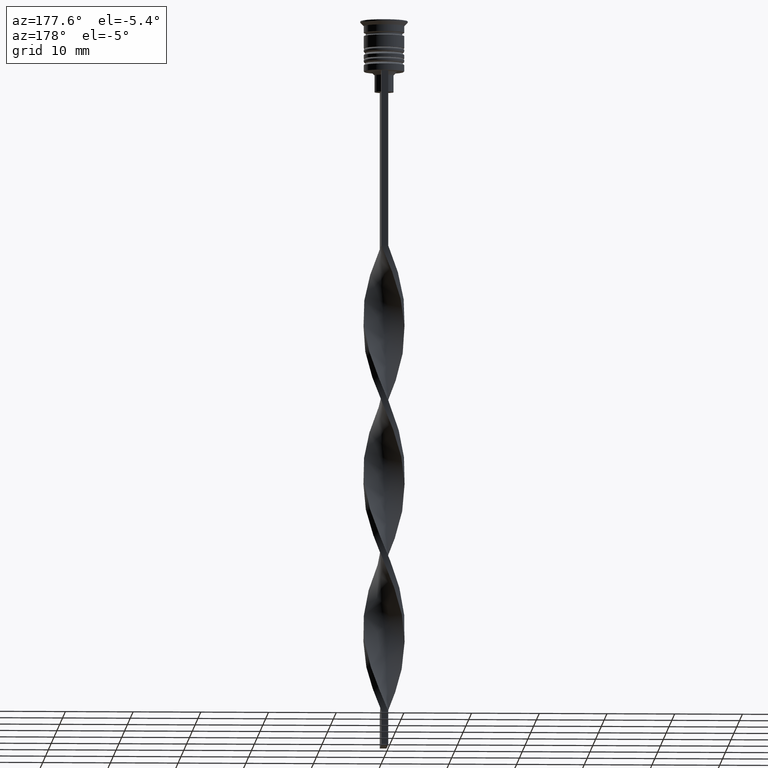
[diagram: clean part render]
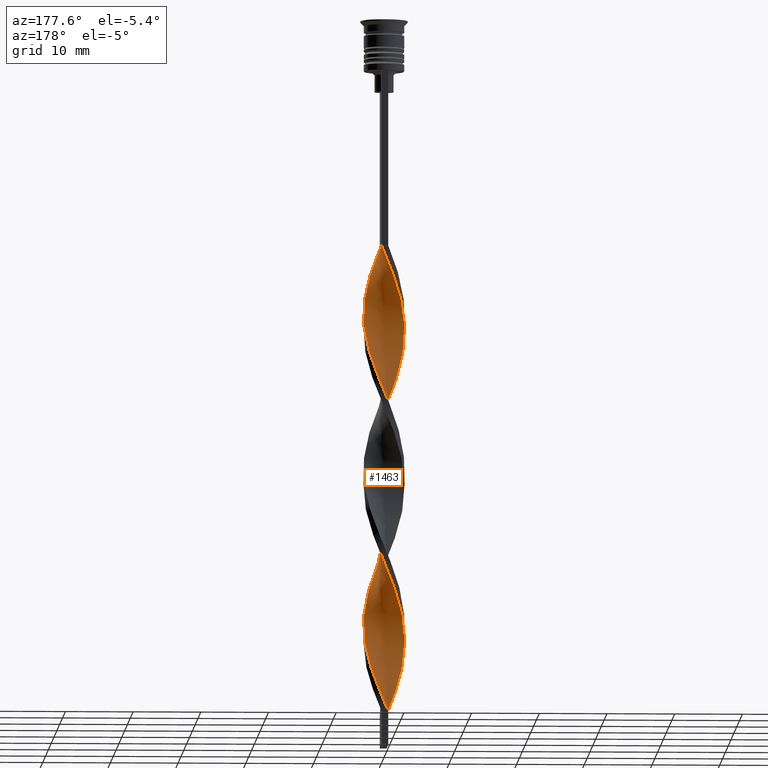
[diagram: same view with one face highlighted and labeled with its STEP entity id]
A machine part, auxiliary view. The second image highlights one B-rep face of the part: STEP entity #1463.
In plain terms, the highlighted face is a freeform B-spline surface patch.
Its self-contained STEP definition (entity closure, byte-faithful):
#11 = CARTESIAN_POINT ( 'NONE',  ( -2.441810035334001761, -1.850388947743476509, -71.53846153846154721 ) ) ;
#19 = CARTESIAN_POINT ( 'NONE',  ( 2.596021493184669904, 1.626975080790203032, -73.30769230769232081 ) ) ;
#20 = CARTESIAN_POINT ( 'NONE',  ( -1.928028413296781762, 2.380983398537114049, -85.69230769230770761 ) ) ;
#26 = CARTESIAN_POINT ( 'NONE',  ( 1.928028413296782428, 2.380983398537112716, -96.30769230769232081 ) ) ;
#42 = CARTESIAN_POINT ( 'NONE',  ( -0.2324760841496473773, 3.032483284421934933, -35.26923076923077360 ) ) ;
#44 = CARTESIAN_POINT ( 'NONE',  ( 3.022034030597048559, 0.5036723384328410935, -91.00000000000001421 ) ) ;
#58 = CARTESIAN_POINT ( 'NONE',  ( -0.2324760841496473773, 3.032483284421934933, -81.26923076923077360 ) ) ;
#60 = CARTESIAN_POINT ( 'NONE',  ( 1.203417901575699167, -2.793167620134377582, -81.26923076923077360 ) ) ;
#64 = CARTESIAN_POINT ( 'NONE',  ( 2.131225204431203668, -2.200966749995606264, -83.92307692307691980 ) ) ;
#77 = CARTESIAN_POINT ( 'NONE',  ( 2.363623348807935898, -1.913970915392906091, -84.80769230769232081 ) ) ;
#79 = CARTESIAN_POINT ( 'NONE',  ( -0.8642659496667827179, -2.939289008388869640, -101.6153846153846132 ) ) ;
#97 = CARTESIAN_POINT ( 'NONE',  ( 3.038394962421823831, 0.1347443962830572051, -90.11538461538462741 ) ) ;
#99 = CARTESIAN_POINT ( 'NONE',  ( 2.627746284534977050, 1.531322782470313726, -47.65384615384616041 ) ) ;
#106 = CARTESIAN_POINT ( 'NONE',  ( 0.4999999999999998890, -3.000000000000000000, -33.50000000000000000 ) ) ;
#117 = CARTESIAN_POINT ( 'NONE',  ( 3.054755894246598658, -0.2341835458667260450, -43.23076923076922640 ) ) ;
#119 = CARTESIAN_POINT ( 'NONE',  ( -0.5000000000000002220, -3.000000000000000000, -102.5000000000000142 ) ) ;
#122 = CARTESIAN_POINT ( 'NONE',  ( -2.909946448908425687, -0.9584295337030731554, -94.53846153846154721 ) ) ;
#134 = CARTESIAN_POINT ( 'NONE',  ( 0.4999999999999998890, -3.000000000000000000, -33.50000000000000000 ) ) ;
#169 = CARTESIAN_POINT ( 'NONE',  ( -3.054755894246598658, -0.2341835458667257397, -92.76923076923077360 ) ) ;
#171 = CARTESIAN_POINT ( 'NONE',  ( 0.1357340503332183645, 3.060710991611130360, -34.38461538461538680 ) ) ;
#173 = CARTESIAN_POINT ( 'NONE',  ( 2.596021493184669904, 1.626975080790203032, -73.30769230769232081 ) ) ;
#177 = CARTESIAN_POINT ( 'NONE',  ( -0.4999999999999997780, 1.000000000000000000, -102.5000000000000142 ) ) ;
#187 =( BOUNDED_CURVE ( )  B_SPLINE_CURVE ( 2, ( #2970, #503, #42, #2680, #1566, #3233, #2914, #2630, #1350, #1299, #286, #2148, #2421, #780, #1583, #268, #2644, #1091, #761, #2401, #2130, #1863, #2383, #1606, #3214, #823, #1885, #2954, #3417, #1109, #1623, #303, #2171, #838, #1903, #574, #2364, #1037, #2094, #1827, #2896, #938, #1495, #1226, #2570, #173, #1125, #1244, #2306, #338, #3361, #1638, #2188, #2712, #58, #321, #2985, #1400, #2469, #20, #3344, #1750, #360, #651, #2011, #2771, #383, #169, #2527, #122, #3077, #3276, #882, #1945, #2155, #3254, #274, #3198, #292 ),
 .UNSPECIFIED., .F., .T. ) 
 B_SPLINE_CURVE_WITH_KNOTS ( ( 3, 2, 2, 2, 2, 2, 2, 2, 2, 2, 2, 2, 2, 2, 2, 2, 2, 2, 2, 2, 2, 2, 2, 2, 2, 2, 2, 2, 2, 2, 2, 2, 2, 2, 2, 2, 2, 2, 2, 3 ),
 ( 0.000000000000000000, 0.01923076923076923184, 0.03846153846153846367, 0.05769230769230768857, 0.07692307692307692735, 0.09615384615384615918, 0.1153846153846153771, 0.1346153846153846090, 0.1538461538461538547, 0.1730769230769230449, 0.1923076923076923184, 0.2115384615384615363, 0.2307692307692307543, 0.2500000000000000000, 0.2692307692307692180, 0.2884615384615384359, 0.3076923076923077094, 0.3269230769230769273, 0.3461538461538460898, 0.3653846153846153633, 0.3846153846153846367, 0.4038461538461539102, 0.4230769230769230727, 0.4423076923076922906, 0.4615384615384615086, 0.4807692307692307820, 0.5000000000000000000, 0.5192307692307692735, 0.5384615384615384359, 0.5576923076923077094, 0.5769230769230768718, 0.5961538461538461453, 0.6153846153846154188, 0.6346153846153845812, 0.6538461538461538547, 0.6730769230769230171, 0.6923076923076921796, 0.7115384615384615641, 0.7307692307692307265, 0.7500000000000000000 ),
 .UNSPECIFIED. ) 
 CURVE ( )  GEOMETRIC_REPRESENTATION_ITEM ( )  RATIONAL_B_SPLINE_CURVE ( ( 1.000000000000000000, 0.9927088740980539727, 1.000000000000000000, 0.9927088740980539727, 1.000000000000000000, 0.9927088740980539727, 1.000000000000000000, 0.9927088740980539727, 1.000000000000000000, 0.9927088740980539727, 1.000000000000000000, 0.9927088740980539727, 1.000000000000000000, 0.9927088740980539727, 1.000000000000000000, 0.9927088740980539727, 1.000000000000000000, 0.9927088740980539727, 1.000000000000000000, 0.9927088740980539727, 1.000000000000000000, 0.9927088740980539727, 1.000000000000000000, 0.9927088740980539727, 1.000000000000000000, 0.9927088740980539727, 1.000000000000000000, 0.9927088740980539727, 1.000000000000000000, 0.9927088740980539727, 1.000000000000000000, 0.9927088740980539727, 1.000000000000000000, 0.9927088740980539727, 1.000000000000000000, 0.9927088740980539727, 1.000000000000000000, 0.9927088740980539727, 1.000000000000000000, 0.9927088740980539727, 1.000000000000000000, 0.9927088740980539727, 1.000000000000000000, 0.9927088740980539727, 1.000000000000000000, 0.9927088740980539727, 1.000000000000000000, 0.9927088740980539727, 1.000000000000000000, 0.9927088740980539727, 1.000000000000000000, 0.9927088740980539727, 1.000000000000000000, 0.9927088740980539727, 1.000000000000000000, 0.9927088740980539727, 1.000000000000000000, 0.9927088740980539727, 1.000000000000000000, 0.9927088740980539727, 1.000000000000000000, 0.9927088740980539727, 1.000000000000000000, 0.9927088740980539727, 1.000000000000000000, 0.9927088740980539727, 1.000000000000000000, 0.9927088740980539727, 1.000000000000000000, 0.9927088740980539727, 1.000000000000000000, 0.9927088740980539727, 1.000000000000000000, 0.9927088740980539727, 1.000000000000000000, 0.9927088740980539727, 1.000000000000000000, 0.9927088740980539727, 1.000000000000000000 ) ) 
 REPRESENTATION_ITEM ( '' )  );
#198 = CARTESIAN_POINT ( 'NONE',  ( -2.596021493184667683, 1.626975080790206141, -62.69230769230770051 ) ) ;
#217 = CARTESIAN_POINT ( 'NONE',  ( -2.813682533735954117, -1.212256617197149833, -69.76923076923077360 ) ) ;
#218 = CARTESIAN_POINT ( 'NONE',  ( 1.836897528957910364, -2.424006490937745451, -37.03846153846154010 ) ) ;
#232 = CARTESIAN_POINT ( 'NONE',  ( 2.909946448908425687, -0.9584295337030735995, -41.46153846153846700 ) ) ;
#236 = CARTESIAN_POINT ( 'NONE',  ( -2.596021493184668572, -1.626975080790204364, -50.30769230769232081 ) ) ;
#247 = CARTESIAN_POINT ( 'NONE',  ( -0.1357340503332169490, 3.060710991611130360, -101.6153846153846274 ) ) ;
#268 = CARTESIAN_POINT ( 'NONE',  ( -3.054755894246598658, -0.2341835458667257397, -46.76923076923077360 ) ) ;
#269 = CARTESIAN_POINT ( 'NONE',  ( 3.054755894246598658, -0.2341835458667260728, -89.23076923076924061 ) ) ;
#274 = CARTESIAN_POINT ( 'NONE',  ( -1.203417901575700277, -2.793167620134377138, -100.7307692307692406 ) ) ;
#286 = CARTESIAN_POINT ( 'NONE',  ( -2.627746284534976606, 1.531322782470314836, -42.34615384615385381 ) ) ;
#287 = CARTESIAN_POINT ( 'NONE',  ( 3.038394962421823831, 0.1347443962830572051, -90.11538461538462741 ) ) ;
#292 = CARTESIAN_POINT ( 'NONE',  ( -0.5000000000000002220, -3.000000000000000000, -102.5000000000000142 ) ) ;
#295 = CARTESIAN_POINT ( 'NONE',  ( 1.928028413296780874, -2.380983398537114049, -62.69230769230770051 ) ) ;
#303 = CARTESIAN_POINT ( 'NONE',  ( 1.302196787976888093, -2.773203748730288964, -60.92307692307692690 ) ) ;
#304 = CARTESIAN_POINT ( 'NONE',  ( -0.9514415033047030068, -2.888729662981513346, -75.96153846153846700 ) ) ;
#321 = CARTESIAN_POINT ( 'NONE',  ( -0.6006862186325128139, 3.004255577232739949, -82.15384615384617462 ) ) ;
#330 = CARTESIAN_POINT ( 'NONE',  ( 3.022034030597048559, -0.5036723384328418707, -68.00000000000000000 ) ) ;
#338 = CARTESIAN_POINT ( 'NONE',  ( 1.542569853484617948, 2.647046231879884193, -76.84615384615386802 ) ) ;
#355 = CARTESIAN_POINT ( 'NONE',  ( 2.184919224315391872, 2.115686173140295168, -95.42307692307693401 ) ) ;
#356 = CARTESIAN_POINT ( 'NONE',  ( 1.542569853484617060, -2.647046231879885081, -36.15384615384615330 ) ) ;
#360 = CARTESIAN_POINT ( 'NONE',  ( -2.627746284534976606, 1.531322782470314836, -88.34615384615385381 ) ) ;
#374 = CARTESIAN_POINT ( 'NONE',  ( 2.627746284534977050, 1.531322782470313726, -93.65384615384617462 ) ) ;
#376 = CARTESIAN_POINT ( 'NONE',  ( 2.982351171577512172, -0.5963065397849001137, -42.34615384615385381 ) ) ;
#383 = CARTESIAN_POINT ( 'NONE',  ( -3.038394962421823386, 0.1347443962830582320, -91.88461538461540101 ) ) ;
#394 = CARTESIAN_POINT ( 'NONE',  ( -1.542569853484617948, -2.647046231879884193, -99.84615384615385381 ) ) ;
#406 = CARTESIAN_POINT ( 'NONE',  ( -0.5000000000000002220, -3.000000000000000000, -102.5000000000000142 ) ) ;
#409 = CARTESIAN_POINT ( 'NONE',  ( 0.1357340503332183645, 3.060710991611130360, -80.38461538461538680 ) ) ;
#423 = CARTESIAN_POINT ( 'NONE',  ( -2.917858282166500672, -0.8579644778149938533, -68.88461538461538680 ) ) ;
#443 = CARTESIAN_POINT ( 'NONE',  ( -0.4999999999999995559, 3.000000000000000000, -56.50000000000000711 ) ) ;
#444 = CARTESIAN_POINT ( 'NONE',  ( -2.917858282166500672, -0.8579644778149938533, -68.88461538461538680 ) ) ;
#467 = CARTESIAN_POINT ( 'NONE',  ( -3.022034030597048559, -0.5036723384328407604, -68.00000000000000000 ) ) ;
#469 = CARTESIAN_POINT ( 'NONE',  ( 2.131225204431203668, -2.200966749995606264, -37.92307692307692690 ) ) ;
#478 = CARTESIAN_POINT ( 'NONE',  ( -3.038394962421823386, 0.1347443962830582320, -45.88461538461538680 ) ) ;
#486 = VERTEX_POINT ( 'NONE', #106 ) ;
#489 = CARTESIAN_POINT ( 'NONE',  ( 1.302196787976888759, 2.773203748730288076, -52.07692307692308020 ) ) ;
#495 = CARTESIAN_POINT ( 'NONE',  ( -2.909946448908425243, -0.9584295337030731554, -48.53846153846154010 ) ) ;
#503 = CARTESIAN_POINT ( 'NONE',  ( 0.1357340503332183368, 3.060710991611130360, -34.38461538461538680 ) ) ;
#504 = CARTESIAN_POINT ( 'NONE',  ( 0.8642659496667816077, -2.939289008388869640, -80.38461538461538680 ) ) ;
#512 = CARTESIAN_POINT ( 'NONE',  ( -2.627746284534976606, 1.531322782470314836, -42.34615384615385381 ) ) ;
#520 = ORIENTED_EDGE ( 'NONE', *, *, #585, .F. ) ;
#550 = CARTESIAN_POINT ( 'NONE',  ( 2.813682533735953228, -1.212256617197150721, -66.23076923076922640 ) ) ;
#574 = CARTESIAN_POINT ( 'NONE',  ( 2.441810035333999540, -1.850388947743479173, -64.46153846153845279 ) ) ;
#575 = CARTESIAN_POINT ( 'NONE',  ( 2.982351171577512172, -0.5963065397849001137, -88.34615384615385381 ) ) ;
#579 = CARTESIAN_POINT ( 'NONE',  ( -0.6006862186325142572, -3.004255577232739949, -76.84615384615386802 ) ) ;
#584 = CARTESIAN_POINT ( 'NONE',  ( 2.627746284534976606, -1.531322782470315058, -65.34615384615385381 ) ) ;
#585 = EDGE_CURVE ( 'NONE', #486, #1491, #1961, .T. ) ;
#597 = CARTESIAN_POINT ( 'NONE',  ( 0.9514415033047012304, 2.888729662981513346, -98.96153846153848122 ) ) ;
#598 = CARTESIAN_POINT ( 'NONE',  ( -2.627746284534976606, 1.531322782470314836, -88.34615384615385381 ) ) ;
#611 = CARTESIAN_POINT ( 'NONE',  ( 2.813682533735953228, 1.212256617197150721, -46.76923076923076650 ) ) ;
#627 = CARTESIAN_POINT ( 'NONE',  ( 2.813682533735953228, 1.212256617197150721, -92.76923076923075939 ) ) ;
#628 = CARTESIAN_POINT ( 'NONE',  ( -3.022034030597048559, 0.5036723384328415376, -91.00000000000001421 ) ) ;
#651 = CARTESIAN_POINT ( 'NONE',  ( -2.813682533735953228, 1.212256617197151165, -89.23076923076924061 ) ) ;
#661 = CARTESIAN_POINT ( 'NONE',  ( -2.363623348807936342, -1.913970915392904981, -97.19230769230770761 ) ) ;
#677 = CARTESIAN_POINT ( 'NONE',  ( -1.836897528957910364, 2.424006490937745451, -60.03846153846154010 ) ) ;
#695 = CARTESIAN_POINT ( 'NONE',  ( -2.982351171577512172, 0.5963065397849003357, -65.34615384615385381 ) ) ;
#697 = CARTESIAN_POINT ( 'NONE',  ( 3.038394962421823831, 0.1347443962830572051, -44.11538461538462030 ) ) ;
#715 = CARTESIAN_POINT ( 'NONE',  ( -1.542569853484615727, 2.647046231879885525, -59.15384615384616041 ) ) ;
#727 = CARTESIAN_POINT ( 'NONE',  ( -1.836897528957910364, 2.424006490937745451, -60.03846153846154010 ) ) ;
#742 = CARTESIAN_POINT ( 'NONE',  ( -1.615112600636836371, -2.577093573633699730, -74.19230769230769340 ) ) ;
#743 = CARTESIAN_POINT ( 'NONE',  ( -2.909946448908425243, 0.9584295337030753759, -64.46153846153845279 ) ) ;
#761 = CARTESIAN_POINT ( 'NONE',  ( -2.752983971046547129, -1.292702307246638815, -49.42307692307693401 ) ) ;
#762 = CARTESIAN_POINT ( 'NONE',  ( -1.302196787976888759, -2.773203748730288076, -75.07692307692308020 ) ) ;
#780 = CARTESIAN_POINT ( 'NONE',  ( -3.022034030597048559, 0.5036723384328415376, -45.00000000000000711 ) ) ;
#781 = CARTESIAN_POINT ( 'NONE',  ( 1.836897528957910364, -2.424006490937745451, -83.03846153846154721 ) ) ;
#788 = CARTESIAN_POINT ( 'NONE',  ( 2.917858282166500228, -0.8579644778149976281, -67.11538461538461320 ) ) ;
#809 = CARTESIAN_POINT ( 'NONE',  ( 1.542569853484618170, 2.647046231879884193, -76.84615384615386802 ) ) ;
#823 = CARTESIAN_POINT ( 'NONE',  ( -0.8642659496667828289, -2.939289008388869640, -55.61538461538462741 ) ) ;
#831 = CARTESIAN_POINT ( 'NONE',  ( 2.363623348807936786, 1.913970915392904315, -74.19230769230769340 ) ) ;
#838 = CARTESIAN_POINT ( 'NONE',  ( 1.928028413296780874, -2.380983398537114493, -62.69230769230770051 ) ) ;
#839 = CARTESIAN_POINT ( 'NONE',  ( 2.813682533735953228, 1.212256617197150721, -92.76923076923077360 ) ) ;
#842 = ORIENTED_EDGE ( 'NONE', *, *, #2337, .F. ) ;
#843 = CARTESIAN_POINT ( 'NONE',  ( 2.441810035334000872, 1.850388947743477175, -94.53846153846153300 ) ) ;
#875 = CARTESIAN_POINT ( 'NONE',  ( 1.542569853484617060, -2.647046231879885081, -82.15384615384617462 ) ) ;
#876 = CARTESIAN_POINT ( 'NONE',  ( 2.596021493184668572, -1.626975080790205697, -39.69230769230769340 ) ) ;
#882 = CARTESIAN_POINT ( 'NONE',  ( -2.363623348807936342, -1.913970915392904981, -97.19230769230770761 ) ) ;
#895 = CARTESIAN_POINT ( 'NONE',  ( -0.2324760841496502084, -3.032483284421934489, -77.73076923076924061 ) ) ;
#896 = CARTESIAN_POINT ( 'NONE',  ( -2.909946448908425243, -0.9584295337030731554, -94.53846153846153300 ) ) ;
#938 = CARTESIAN_POINT ( 'NONE',  ( 3.054755894246598658, 0.2341835458667245740, -69.76923076923077360 ) ) ;
#944 = ORIENTED_EDGE ( 'NONE', *, *, #1256, .F. ) ;
#960 = CARTESIAN_POINT ( 'NONE',  ( -2.752983971046547129, 1.292702307246639704, -63.57692307692308731 ) ) ;
#963 = CARTESIAN_POINT ( 'NONE',  ( -0.4999999999999995559, 3.000000000000000000, -56.50000000000000711 ) ) ;
#983 = CARTESIAN_POINT ( 'NONE',  ( 0.6006862186325140351, 3.004255577232739949, -53.84615384615384670 ) ) ;
#1003 = CARTESIAN_POINT ( 'NONE',  ( 2.982351171577512172, -0.5963065397849001137, -42.34615384615385381 ) ) ;
#1009 = CARTESIAN_POINT ( 'NONE',  ( 0.4999999999999998890, 3.000000000000000000, -33.50000000000000000 ) ) ;
#1018 = CARTESIAN_POINT ( 'NONE',  ( -2.363623348807935898, 1.913970915392906536, -61.80769230769231370 ) ) ;
#1019 = CARTESIAN_POINT ( 'NONE',  ( 2.813682533735953228, 1.212256617197150721, -46.76923076923077360 ) ) ;
#1026 = CARTESIAN_POINT ( 'NONE',  ( -1.302196787976888093, 2.773203748730288520, -37.92307692307692690 ) ) ;
#1030 =( BOUNDED_SURFACE ( )  B_SPLINE_SURFACE ( 1, 2, ( 
 ( #1009, #171, #2872, #1243, #1290, #1026, #2029, #3427, #3145, #2839, #512, #2568, #3097, #1277, #478, #3128, #1540, #495, #2636, #236, #1305, #2372, #1770, #2048, #1508, #3114, #2586, #1257, #2963, #2992, #3241, #3223, #1343, #295, #2977, #3202, #584, #550, #788, #330, #1614, #2412, #1648, #2723, #1358, #19, #831, #2196, #2159, #809, #2427, #1850, #1572, #409, #2498, #1667, #1448, #3343, #2215, #2788, #3011, #1681, #598, #3289, #3060, #628, #2798, #1444, #1166, #896, #2194, #2261, #661, #1664, #3025, #394, #1405, #79, #406 ),
 ( #134, #2209, #1974, #356, #3044, #1471, #1199, #876, #1131, #2767, #376, #117, #3007, #3321, #3253, #611, #99, #1678, #1422, #2491, #2229, #1181, #2246, #983, #1237, #2835, #443, #2041, #3073, #2315, #677, #2563, #1018, #198, #960, #2021, #695, #2850, #1744, #467, #423, #217, #1285, #2348, #3402, #2075, #742, #3220, #2208, #579, #895, #2474, #1391, #1958, #3270, #875, #1693, #64, #77, #1420, #1130, #2490, #1144, #1114, #97, #2750, #2177, #627, #374, #843, #355, #1628, #3024, #1165, #597, #2765, #2959, #1443, #2192 ) ),
 .UNSPECIFIED., .F., .F., .F. ) 
 B_SPLINE_SURFACE_WITH_KNOTS ( ( 2, 2 ),
 ( 3, 2, 2, 2, 2, 2, 2, 2, 2, 2, 2, 2, 2, 2, 2, 2, 2, 2, 2, 2, 2, 2, 2, 2, 2, 2, 2, 2, 2, 2, 2, 2, 2, 2, 2, 2, 2, 2, 2, 3 ),
 ( 0.000000000000000000, 1.000000000000000000 ),
 ( 0.000000000000000000, 0.01923076923076923184, 0.03846153846153846367, 0.05769230769230769551, 0.07692307692307692735, 0.09615384615384615918, 0.1153846153846153910, 0.1346153846153846090, 0.1538461538461538547, 0.1730769230769230727, 0.1923076923076923184, 0.2115384615384615363, 0.2307692307692307820, 0.2500000000000000000, 0.2692307692307692180, 0.2884615384615384359, 0.3076923076923077094, 0.3269230769230769273, 0.3461538461538461453, 0.3653846153846153633, 0.3846153846153846367, 0.4038461538461538547, 0.4230769230769230727, 0.4423076923076922906, 0.4615384615384615641, 0.4807692307692307820, 0.5000000000000000000, 0.5192307692307692735, 0.5384615384615384359, 0.5576923076923077094, 0.5769230769230768718, 0.5961538461538461453, 0.6153846153846154188, 0.6346153846153845812, 0.6538461538461538547, 0.6730769230769231282, 0.6923076923076922906, 0.7115384615384615641, 0.7307692307692307265, 0.7500000000000000000 ),
 .UNSPECIFIED. ) 
 GEOMETRIC_REPRESENTATION_ITEM ( )  RATIONAL_B_SPLINE_SURFACE ( (
 ( 1.000000000000000000, 0.9927088740980539727, 1.000000000000000000, 0.9927088740980539727, 1.000000000000000000, 0.9927088740980539727, 1.000000000000000000, 0.9927088740980539727, 1.000000000000000000, 0.9927088740980539727, 1.000000000000000000, 0.9927088740980539727, 1.000000000000000000, 0.9927088740980539727, 1.000000000000000000, 0.9927088740980539727, 1.000000000000000000, 0.9927088740980539727, 1.000000000000000000, 0.9927088740980539727, 1.000000000000000000, 0.9927088740980539727, 1.000000000000000000, 0.9927088740980539727, 1.000000000000000000, 0.9927088740980539727, 1.000000000000000000, 0.9927088740980539727, 1.000000000000000000, 0.9927088740980539727, 1.000000000000000000, 0.9927088740980539727, 1.000000000000000000, 0.9927088740980539727, 1.000000000000000000, 0.9927088740980539727, 1.000000000000000000, 0.9927088740980539727, 1.000000000000000000, 0.9927088740980539727, 1.000000000000000000, 0.9927088740980539727, 1.000000000000000000, 0.9927088740980539727, 1.000000000000000000, 0.9927088740980539727, 1.000000000000000000, 0.9927088740980539727, 1.000000000000000000, 0.9927088740980539727, 1.000000000000000000, 0.9927088740980539727, 1.000000000000000000, 0.9927088740980539727, 1.000000000000000000, 0.9927088740980539727, 1.000000000000000000, 0.9927088740980539727, 1.000000000000000000, 0.9927088740980539727, 1.000000000000000000, 0.9927088740980539727, 1.000000000000000000, 0.9927088740980539727, 1.000000000000000000, 0.9927088740980539727, 1.000000000000000000, 0.9927088740980539727, 1.000000000000000000, 0.9927088740980539727, 1.000000000000000000, 0.9927088740980539727, 1.000000000000000000, 0.9927088740980539727, 1.000000000000000000, 0.9927088740980539727, 1.000000000000000000, 0.9927088740980539727, 1.000000000000000000),
 ( 1.000000000000000000, 0.9927088740980539727, 1.000000000000000000, 0.9927088740980539727, 1.000000000000000000, 0.9927088740980539727, 1.000000000000000000, 0.9927088740980539727, 1.000000000000000000, 0.9927088740980539727, 1.000000000000000000, 0.9927088740980539727, 1.000000000000000000, 0.9927088740980539727, 1.000000000000000000, 0.9927088740980539727, 1.000000000000000000, 0.9927088740980539727, 1.000000000000000000, 0.9927088740980539727, 1.000000000000000000, 0.9927088740980539727, 1.000000000000000000, 0.9927088740980539727, 1.000000000000000000, 0.9927088740980539727, 1.000000000000000000, 0.9927088740980539727, 1.000000000000000000, 0.9927088740980539727, 1.000000000000000000, 0.9927088740980539727, 1.000000000000000000, 0.9927088740980539727, 1.000000000000000000, 0.9927088740980539727, 1.000000000000000000, 0.9927088740980539727, 1.000000000000000000, 0.9927088740980539727, 1.000000000000000000, 0.9927088740980539727, 1.000000000000000000, 0.9927088740980539727, 1.000000000000000000, 0.9927088740980539727, 1.000000000000000000, 0.9927088740980539727, 1.000000000000000000, 0.9927088740980539727, 1.000000000000000000, 0.9927088740980539727, 1.000000000000000000, 0.9927088740980539727, 1.000000000000000000, 0.9927088740980539727, 1.000000000000000000, 0.9927088740980539727, 1.000000000000000000, 0.9927088740980539727, 1.000000000000000000, 0.9927088740980539727, 1.000000000000000000, 0.9927088740980539727, 1.000000000000000000, 0.9927088740980539727, 1.000000000000000000, 0.9927088740980539727, 1.000000000000000000, 0.9927088740980539727, 1.000000000000000000, 0.9927088740980539727, 1.000000000000000000, 0.9927088740980539727, 1.000000000000000000, 0.9927088740980539727, 1.000000000000000000, 0.9927088740980539727, 1.000000000000000000) ) ) 
 REPRESENTATION_ITEM ( '' )  SURFACE ( )  );
#1034 = VECTOR ( 'NONE', #1701, 1000.000000000000000 ) ;
#1037 = CARTESIAN_POINT ( 'NONE',  ( 2.813682533735953228, -1.212256617197150721, -66.23076923076922640 ) ) ;
#1039 = CARTESIAN_POINT ( 'NONE',  ( -2.752983971046547129, 1.292702307246639704, -63.57692307692308731 ) ) ;
#1058 = CARTESIAN_POINT ( 'NONE',  ( 1.615112600636835927, 2.577093573633700174, -97.19230769230770761 ) ) ;
#1091 = CARTESIAN_POINT ( 'NONE',  ( -2.909946448908425687, -0.9584295337030731554, -48.53846153846154721 ) ) ;
#1093 = CARTESIAN_POINT ( 'NONE',  ( 1.542569853484617060, -2.647046231879885081, -82.15384615384617462 ) ) ;
#1109 = CARTESIAN_POINT ( 'NONE',  ( 0.6006862186325115927, -3.004255577232740393, -59.15384615384616041 ) ) ;
#1110 = CARTESIAN_POINT ( 'NONE',  ( 2.752983971046547129, -1.292702307246639704, -86.57692307692308020 ) ) ;
#1114 = CARTESIAN_POINT ( 'NONE',  ( 3.054755894246598658, -0.2341835458667260450, -89.23076923076922640 ) ) ;
#1125 = CARTESIAN_POINT ( 'NONE',  ( 2.363623348807936786, 1.913970915392904315, -74.19230769230769340 ) ) ;
#1130 = CARTESIAN_POINT ( 'NONE',  ( 2.752983971046547129, -1.292702307246639704, -86.57692307692308020 ) ) ;
#1131 = CARTESIAN_POINT ( 'NONE',  ( 2.752983971046547129, -1.292702307246639704, -40.57692307692308020 ) ) ;
#1142 = EDGE_CURVE ( 'NONE', #486, #3055, #1610, .T. ) ;
#1144 = CARTESIAN_POINT ( 'NONE',  ( 2.982351171577512172, -0.5963065397849001137, -88.34615384615385381 ) ) ;
#1165 = CARTESIAN_POINT ( 'NONE',  ( 1.302196787976888759, 2.773203748730288076, -98.07692307692308020 ) ) ;
#1166 = CARTESIAN_POINT ( 'NONE',  ( -2.982351171577512616, -0.5963065397848991145, -93.65384615384617462 ) ) ;
#1181 = CARTESIAN_POINT ( 'NONE',  ( 1.302196787976888759, 2.773203748730288076, -52.07692307692308020 ) ) ;
#1199 = CARTESIAN_POINT ( 'NONE',  ( 2.363623348807935898, -1.913970915392906091, -38.80769230769230660 ) ) ;
#1226 = CARTESIAN_POINT ( 'NONE',  ( 2.909946448908426575, 0.9584295337030716011, -71.53846153846154721 ) ) ;
#1237 = CARTESIAN_POINT ( 'NONE',  ( 0.2324760841496485153, 3.032483284421934489, -54.73076923076923350 ) ) ;
#1238 = CARTESIAN_POINT ( 'NONE',  ( 3.022034030597048559, 0.5036723384328410935, -45.00000000000000711 ) ) ;
#1243 = CARTESIAN_POINT ( 'NONE',  ( -0.6006862186325128139, 3.004255577232739949, -36.15384615384615330 ) ) ;
#1244 = CARTESIAN_POINT ( 'NONE',  ( 2.131225204431204556, 2.200966749995605820, -75.07692307692308020 ) ) ;
#1256 = EDGE_CURVE ( 'NONE', #1491, #1621, #187, .T. ) ;
#1257 = CARTESIAN_POINT ( 'NONE',  ( -0.1357340503332189474, -3.060710991611130360, -57.38461538461538680 ) ) ;
#1277 = CARTESIAN_POINT ( 'NONE',  ( -3.022034030597048559, 0.5036723384328415376, -45.00000000000000711 ) ) ;
#1285 = CARTESIAN_POINT ( 'NONE',  ( -2.627746284534977050, -1.531322782470314170, -70.65384615384616041 ) ) ;
#1290 = CARTESIAN_POINT ( 'NONE',  ( -0.9514415033047005643, 2.888729662981513790, -37.03846153846154010 ) ) ;
#1299 = CARTESIAN_POINT ( 'NONE',  ( -2.441810035334000872, 1.850388947743477841, -41.46153846153846700 ) ) ;
#1305 = CARTESIAN_POINT ( 'NONE',  ( -2.363623348807936342, -1.913970915392904981, -51.19230769230769340 ) ) ;
#1334 = CARTESIAN_POINT ( 'NONE',  ( 2.917858282166500672, 0.8579644778149956297, -91.88461538461540101 ) ) ;
#1343 = CARTESIAN_POINT ( 'NONE',  ( 1.615112600636834372, -2.577093573633701062, -61.80769230769231370 ) ) ;
#1350 = CARTESIAN_POINT ( 'NONE',  ( -2.184919224315390984, 2.115686173140295612, -40.57692307692308020 ) ) ;
#1358 = CARTESIAN_POINT ( 'NONE',  ( 2.752983971046547573, 1.292702307246638371, -72.42307692307691980 ) ) ;
#1368 = CARTESIAN_POINT ( 'NONE',  ( -2.184919224315392317, -2.115686173140294724, -72.42307692307691980 ) ) ;
#1391 = CARTESIAN_POINT ( 'NONE',  ( 0.4999999999999998890, -3.000000000000000000, -79.50000000000001421 ) ) ;
#1400 = CARTESIAN_POINT ( 'NONE',  ( -1.302196787976888315, 2.773203748730288520, -83.92307692307693401 ) ) ;
#1405 = CARTESIAN_POINT ( 'NONE',  ( -1.203417901575700277, -2.793167620134377138, -100.7307692307692406 ) ) ;
#1420 = CARTESIAN_POINT ( 'NONE',  ( 2.596021493184668572, -1.626975080790205697, -85.69230769230770761 ) ) ;
#1422 = CARTESIAN_POINT ( 'NONE',  ( 2.184919224315391872, 2.115686173140295168, -49.42307692307693401 ) ) ;
#1443 = CARTESIAN_POINT ( 'NONE',  ( -0.1357340503332169768, 3.060710991611130360, -101.6153846153846132 ) ) ;
#1444 = CARTESIAN_POINT ( 'NONE',  ( -3.054755894246598658, -0.2341835458667257397, -92.76923076923075939 ) ) ;
#1448 = CARTESIAN_POINT ( 'NONE',  ( -0.9514415033047005643, 2.888729662981513790, -83.03846153846154721 ) ) ;
#1456 = EDGE_LOOP ( 'NONE', ( #520, #2698, #842, #944 ) ) ;
#1463 = ADVANCED_FACE ( 'NONE', ( #2904 ), #1030, .T. ) ;
#1471 = CARTESIAN_POINT ( 'NONE',  ( 2.131225204431203668, -2.200966749995606264, -37.92307692307692690 ) ) ;
#1491 = VERTEX_POINT ( 'NONE', #1891 ) ;
#1495 = CARTESIAN_POINT ( 'NONE',  ( 2.982351171577512616, 0.5963065397848995586, -70.65384615384616041 ) ) ;
#1506 = CARTESIAN_POINT ( 'NONE',  ( 2.627746284534977050, 1.531322782470313726, -47.65384615384616041 ) ) ;
#1508 = CARTESIAN_POINT ( 'NONE',  ( -1.203417901575700277, -2.793167620134377138, -54.73076923076923350 ) ) ;
#1517 = CARTESIAN_POINT ( 'NONE',  ( 2.363623348807935898, -1.913970915392906091, -38.80769230769230660 ) ) ;
#1533 = CARTESIAN_POINT ( 'NONE',  ( -3.022034030597048559, -0.5036723384328408715, -68.00000000000000000 ) ) ;
#1540 = CARTESIAN_POINT ( 'NONE',  ( -2.982351171577512616, -0.5963065397848991145, -47.65384615384616041 ) ) ;
#1566 = CARTESIAN_POINT ( 'NONE',  ( -0.9514415033047005643, 2.888729662981513790, -37.03846153846154010 ) ) ;
#1567 = CARTESIAN_POINT ( 'NONE',  ( 2.441810035334000872, 1.850388947743477397, -94.53846153846154721 ) ) ;
#1572 = CARTESIAN_POINT ( 'NONE',  ( 0.4999999999999998890, 3.000000000000000000, -79.50000000000001421 ) ) ;
#1583 = CARTESIAN_POINT ( 'NONE',  ( -3.038394962421823386, 0.1347443962830582320, -45.88461538461538680 ) ) ;
#1606 = CARTESIAN_POINT ( 'NONE',  ( -1.542569853484617726, -2.647046231879884193, -53.84615384615384670 ) ) ;
#1607 = CARTESIAN_POINT ( 'NONE',  ( 2.363623348807935898, -1.913970915392906091, -84.80769230769232081 ) ) ;
#1610 =( BOUNDED_CURVE ( )  B_SPLINE_CURVE ( 2, ( #2565, #1808, #3111, #2022, #218, #469, #1517, #3091, #2333, #232, #1003, #2317, #697, #1238, #2299, #1019, #1506, #3420, #2596, #2881, #2058, #489, #2616, #3355, #2365, #2631, #963, #3372, #3123, #715, #727, #1779, #1789, #2864, #1039, #743, #1767, #2583, #2836, #1533, #444, #2349, #3403, #11, #1368, #1828, #3442, #762, #304, #2438, #2955, #2897, #2173, #504, #60, #1093, #781, #3235, #1607, #2664, #1110, #3216, #575, #269, #287, #44, #1334, #839, #2422, #1567, #1904, #26, #1058, #2971, #2714, #2645, #2150, #247, #1640 ),
 .UNSPECIFIED., .F., .T. ) 
 B_SPLINE_CURVE_WITH_KNOTS ( ( 3, 2, 2, 2, 2, 2, 2, 2, 2, 2, 2, 2, 2, 2, 2, 2, 2, 2, 2, 2, 2, 2, 2, 2, 2, 2, 2, 2, 2, 2, 2, 2, 2, 2, 2, 2, 2, 2, 2, 3 ),
 ( 0.000000000000000000, 0.01923076923076923184, 0.03846153846153846367, 0.05769230769230768857, 0.07692307692307692735, 0.09615384615384615918, 0.1153846153846153771, 0.1346153846153846090, 0.1538461538461538547, 0.1730769230769230449, 0.1923076923076923184, 0.2115384615384615363, 0.2307692307692307543, 0.2500000000000000000, 0.2692307692307692180, 0.2884615384615384359, 0.3076923076923077094, 0.3269230769230769273, 0.3461538461538460898, 0.3653846153846153633, 0.3846153846153846367, 0.4038461538461539102, 0.4230769230769230727, 0.4423076923076922906, 0.4615384615384615086, 0.4807692307692307820, 0.5000000000000000000, 0.5192307692307692735, 0.5384615384615384359, 0.5576923076923077094, 0.5769230769230768718, 0.5961538461538461453, 0.6153846153846154188, 0.6346153846153845812, 0.6538461538461538547, 0.6730769230769230171, 0.6923076923076921796, 0.7115384615384615641, 0.7307692307692307265, 0.7500000000000000000 ),
 .UNSPECIFIED. ) 
 CURVE ( )  GEOMETRIC_REPRESENTATION_ITEM ( )  RATIONAL_B_SPLINE_CURVE ( ( 1.000000000000000000, 0.9927088740980539727, 1.000000000000000000, 0.9927088740980539727, 1.000000000000000000, 0.9927088740980539727, 1.000000000000000000, 0.9927088740980539727, 1.000000000000000000, 0.9927088740980539727, 1.000000000000000000, 0.9927088740980539727, 1.000000000000000000, 0.9927088740980539727, 1.000000000000000000, 0.9927088740980539727, 1.000000000000000000, 0.9927088740980539727, 1.000000000000000000, 0.9927088740980539727, 1.000000000000000000, 0.9927088740980539727, 1.000000000000000000, 0.9927088740980539727, 1.000000000000000000, 0.9927088740980539727, 1.000000000000000000, 0.9927088740980539727, 1.000000000000000000, 0.9927088740980539727, 1.000000000000000000, 0.9927088740980539727, 1.000000000000000000, 0.9927088740980539727, 1.000000000000000000, 0.9927088740980539727, 1.000000000000000000, 0.9927088740980539727, 1.000000000000000000, 0.9927088740980539727, 1.000000000000000000, 0.9927088740980539727, 1.000000000000000000, 0.9927088740980539727, 1.000000000000000000, 0.9927088740980539727, 1.000000000000000000, 0.9927088740980539727, 1.000000000000000000, 0.9927088740980539727, 1.000000000000000000, 0.9927088740980539727, 1.000000000000000000, 0.9927088740980539727, 1.000000000000000000, 0.9927088740980539727, 1.000000000000000000, 0.9927088740980539727, 1.000000000000000000, 0.9927088740980539727, 1.000000000000000000, 0.9927088740980539727, 1.000000000000000000, 0.9927088740980539727, 1.000000000000000000, 0.9927088740980539727, 1.000000000000000000, 0.9927088740980539727, 1.000000000000000000, 0.9927088740980539727, 1.000000000000000000, 0.9927088740980539727, 1.000000000000000000, 0.9927088740980539727, 1.000000000000000000, 0.9927088740980539727, 1.000000000000000000, 0.9927088740980539727, 1.000000000000000000 ) ) 
 REPRESENTATION_ITEM ( '' )  );
#1614 = CARTESIAN_POINT ( 'NONE',  ( 3.038394962421823386, -0.1347443962830599251, -68.88461538461538680 ) ) ;
#1621 = VERTEX_POINT ( 'NONE', #119 ) ;
#1623 = CARTESIAN_POINT ( 'NONE',  ( 0.9514415033047005643, -2.888729662981513790, -60.03846153846154010 ) ) ;
#1628 = CARTESIAN_POINT ( 'NONE',  ( 1.928028413296782428, 2.380983398537112716, -96.30769230769232081 ) ) ;
#1638 = CARTESIAN_POINT ( 'NONE',  ( 0.8642659496667832730, 2.939289008388869195, -78.61538461538461320 ) ) ;
#1640 = CARTESIAN_POINT ( 'NONE',  ( -0.4999999999999995559, 3.000000000000000000, -102.5000000000000142 ) ) ;
#1648 = CARTESIAN_POINT ( 'NONE',  ( 2.982351171577512616, 0.5963065397848995586, -70.65384615384616041 ) ) ;
#1664 = CARTESIAN_POINT ( 'NONE',  ( -2.131225204431204112, -2.200966749995605820, -98.07692307692308020 ) ) ;
#1667 = CARTESIAN_POINT ( 'NONE',  ( -0.6006862186325128139, 3.004255577232739949, -82.15384615384617462 ) ) ;
#1678 = CARTESIAN_POINT ( 'NONE',  ( 2.441810035334000872, 1.850388947743477175, -48.53846153846154010 ) ) ;
#1681 = CARTESIAN_POINT ( 'NONE',  ( -2.441810035334000872, 1.850388947743477619, -87.46153846153849543 ) ) ;
#1693 = CARTESIAN_POINT ( 'NONE',  ( 1.836897528957910364, -2.424006490937745451, -83.03846153846154721 ) ) ;
#1701 = DIRECTION ( 'NONE',  ( 0.000000000000000000, 1.000000000000000000, 0.000000000000000000 ) ) ;
#1744 = CARTESIAN_POINT ( 'NONE',  ( -3.038394962421823831, -0.1347443962830561781, -67.11538461538461320 ) ) ;
#1750 = CARTESIAN_POINT ( 'NONE',  ( -2.441810035334000872, 1.850388947743477841, -87.46153846153849543 ) ) ;
#1767 = CARTESIAN_POINT ( 'NONE',  ( -2.982351171577512172, 0.5963065397849003357, -65.34615384615385381 ) ) ;
#1770 = CARTESIAN_POINT ( 'NONE',  ( -1.836897528957911030, -2.424006490937745006, -52.96153846153845990 ) ) ;
#1779 = CARTESIAN_POINT ( 'NONE',  ( -2.131225204431203668, 2.200966749995606708, -60.92307692307692690 ) ) ;
#1789 = CARTESIAN_POINT ( 'NONE',  ( -2.363623348807935898, 1.913970915392906536, -61.80769230769231370 ) ) ;
#1808 = CARTESIAN_POINT ( 'NONE',  ( 0.8642659496667816077, -2.939289008388869640, -34.38461538461538680 ) ) ;
#1827 = CARTESIAN_POINT ( 'NONE',  ( 3.022034030597048559, -0.5036723384328418707, -68.00000000000000000 ) ) ;
#1828 = CARTESIAN_POINT ( 'NONE',  ( -1.928028413296783983, -2.380983398537111828, -73.30769230769232081 ) ) ;
#1850 = CARTESIAN_POINT ( 'NONE',  ( 0.8642659496667831620, 2.939289008388869195, -78.61538461538461320 ) ) ;
#1863 = CARTESIAN_POINT ( 'NONE',  ( -2.131225204431204112, -2.200966749995605820, -52.07692307692308020 ) ) ;
#1885 = CARTESIAN_POINT ( 'NONE',  ( -0.5000000000000002220, -3.000000000000000000, -56.50000000000000711 ) ) ;
#1891 = CARTESIAN_POINT ( 'NONE',  ( 0.4999999999999998890, 3.000000000000000000, -33.50000000000000000 ) ) ;
#1903 = CARTESIAN_POINT ( 'NONE',  ( 2.184919224315390984, -2.115686173140295612, -63.57692307692308731 ) ) ;
#1904 = CARTESIAN_POINT ( 'NONE',  ( 2.184919224315391872, 2.115686173140295168, -95.42307692307693401 ) ) ;
#1945 = CARTESIAN_POINT ( 'NONE',  ( -2.131225204431204112, -2.200966749995605820, -98.07692307692309441 ) ) ;
#1958 = CARTESIAN_POINT ( 'NONE',  ( 0.8642659496667817187, -2.939289008388869640, -80.38461538461538680 ) ) ;
#1961 = LINE ( 'NONE', #2754, #1034 ) ;
#1974 = CARTESIAN_POINT ( 'NONE',  ( 1.203417901575699167, -2.793167620134377582, -35.26923076923077360 ) ) ;
#2011 = CARTESIAN_POINT ( 'NONE',  ( -2.917858282166500228, 0.8579644778149966289, -90.11538461538462741 ) ) ;
#2021 = CARTESIAN_POINT ( 'NONE',  ( -2.909946448908424799, 0.9584295337030754869, -64.46153846153845279 ) ) ;
#2022 = CARTESIAN_POINT ( 'NONE',  ( 1.542569853484617060, -2.647046231879885081, -36.15384615384615330 ) ) ;
#2029 = CARTESIAN_POINT ( 'NONE',  ( -1.615112600636834816, 2.577093573633700618, -38.80769230769230660 ) ) ;
#2041 = CARTESIAN_POINT ( 'NONE',  ( -0.8642659496667810526, 2.939289008388869640, -57.38461538461538680 ) ) ;
#2048 = CARTESIAN_POINT ( 'NONE',  ( -1.542569853484617948, -2.647046231879884193, -53.84615384615384670 ) ) ;
#2058 = CARTESIAN_POINT ( 'NONE',  ( 1.615112600636835927, 2.577093573633700174, -51.19230769230769340 ) ) ;
#2075 = CARTESIAN_POINT ( 'NONE',  ( -1.928028413296783983, -2.380983398537111828, -73.30769230769232081 ) ) ;
#2094 = CARTESIAN_POINT ( 'NONE',  ( 2.917858282166500228, -0.8579644778149976281, -67.11538461538461320 ) ) ;
#2130 = CARTESIAN_POINT ( 'NONE',  ( -2.363623348807936342, -1.913970915392904981, -51.19230769230769340 ) ) ;
#2148 = CARTESIAN_POINT ( 'NONE',  ( -2.813682533735953228, 1.212256617197151165, -43.23076923076923350 ) ) ;
#2150 = CARTESIAN_POINT ( 'NONE',  ( 0.2324760841496485153, 3.032483284421934489, -100.7307692307692406 ) ) ;
#2155 = CARTESIAN_POINT ( 'NONE',  ( -1.836897528957911030, -2.424006490937745006, -98.96153846153848122 ) ) ;
#2159 = CARTESIAN_POINT ( 'NONE',  ( 1.836897528957912362, 2.424006490937744118, -75.96153846153846700 ) ) ;
#2171 = CARTESIAN_POINT ( 'NONE',  ( 1.615112600636834372, -2.577093573633701062, -61.80769230769231370 ) ) ;
#2173 = CARTESIAN_POINT ( 'NONE',  ( 0.4999999999999998890, -3.000000000000000000, -79.50000000000001421 ) ) ;
#2177 = CARTESIAN_POINT ( 'NONE',  ( 2.917858282166500672, 0.8579644778149956297, -91.88461538461540101 ) ) ;
#2188 = CARTESIAN_POINT ( 'NONE',  ( 0.4999999999999998890, 3.000000000000000000, -79.50000000000001421 ) ) ;
#2192 = CARTESIAN_POINT ( 'NONE',  ( -0.4999999999999995559, 3.000000000000000000, -102.5000000000000142 ) ) ;
#2194 = CARTESIAN_POINT ( 'NONE',  ( -2.752983971046547129, -1.292702307246638815, -95.42307692307693401 ) ) ;
#2196 = CARTESIAN_POINT ( 'NONE',  ( 2.131225204431204556, 2.200966749995605820, -75.07692307692308020 ) ) ;
#2208 = CARTESIAN_POINT ( 'NONE',  ( -0.9514415033047030068, -2.888729662981513346, -75.96153846153846700 ) ) ;
#2209 = CARTESIAN_POINT ( 'NONE',  ( 0.8642659496667817187, -2.939289008388869640, -34.38461538461538680 ) ) ;
#2215 = CARTESIAN_POINT ( 'NONE',  ( -1.615112600636834816, 2.577093573633700618, -84.80769230769232081 ) ) ;
#2229 = CARTESIAN_POINT ( 'NONE',  ( 1.615112600636835927, 2.577093573633700174, -51.19230769230769340 ) ) ;
#2246 = CARTESIAN_POINT ( 'NONE',  ( 0.9514415033047012304, 2.888729662981513346, -52.96153846153845990 ) ) ;
#2261 = CARTESIAN_POINT ( 'NONE',  ( -2.596021493184668572, -1.626975080790204364, -96.30769230769232081 ) ) ;
#2278 = CARTESIAN_POINT ( 'NONE',  ( -0.5000000000000000000, -1.000000000000000000, -102.5000000000000142 ) ) ;
#2299 = CARTESIAN_POINT ( 'NONE',  ( 2.917858282166500672, 0.8579644778149956297, -45.88461538461538680 ) ) ;
#2306 = CARTESIAN_POINT ( 'NONE',  ( 1.836897528957912362, 2.424006490937744118, -75.96153846153846700 ) ) ;
#2311 = CARTESIAN_POINT ( 'NONE',  ( -0.4999999999999995559, 3.000000000000000000, -102.5000000000000142 ) ) ;
#2315 = CARTESIAN_POINT ( 'NONE',  ( -1.542569853484615727, 2.647046231879885525, -59.15384615384616041 ) ) ;
#2317 = CARTESIAN_POINT ( 'NONE',  ( 3.054755894246598658, -0.2341835458667260728, -43.23076923076923350 ) ) ;
#2333 = CARTESIAN_POINT ( 'NONE',  ( 2.752983971046547129, -1.292702307246639704, -40.57692307692308020 ) ) ;
#2337 = EDGE_CURVE ( 'NONE', #1621, #3055, #2912, .T. ) ;
#2348 = CARTESIAN_POINT ( 'NONE',  ( -2.441810035334001761, -1.850388947743476509, -71.53846153846154721 ) ) ;
#2349 = CARTESIAN_POINT ( 'NONE',  ( -2.813682533735954117, -1.212256617197149833, -69.76923076923077360 ) ) ;
#2364 = CARTESIAN_POINT ( 'NONE',  ( 2.627746284534976606, -1.531322782470315058, -65.34615384615385381 ) ) ;
#2365 = CARTESIAN_POINT ( 'NONE',  ( 0.2324760841496485153, 3.032483284421934489, -54.73076923076923350 ) ) ;
#2372 = CARTESIAN_POINT ( 'NONE',  ( -2.131225204431204112, -2.200966749995605820, -52.07692307692308020 ) ) ;
#2383 = CARTESIAN_POINT ( 'NONE',  ( -1.836897528957911030, -2.424006490937745006, -52.96153846153845990 ) ) ;
#2401 = CARTESIAN_POINT ( 'NONE',  ( -2.596021493184668572, -1.626975080790204586, -50.30769230769231370 ) ) ;
#2412 = CARTESIAN_POINT ( 'NONE',  ( 3.054755894246598658, 0.2341835458667246017, -69.76923076923077360 ) ) ;
#2421 = CARTESIAN_POINT ( 'NONE',  ( -2.917858282166500228, 0.8579644778149966289, -44.11538461538462030 ) ) ;
#2422 = CARTESIAN_POINT ( 'NONE',  ( 2.627746284534977050, 1.531322782470313726, -93.65384615384617462 ) ) ;
#2427 = CARTESIAN_POINT ( 'NONE',  ( 1.203417901575701610, 2.793167620134376250, -77.73076923076924061 ) ) ;
#2438 = CARTESIAN_POINT ( 'NONE',  ( -0.6006862186325142572, -3.004255577232739949, -76.84615384615386802 ) ) ;
#2469 = CARTESIAN_POINT ( 'NONE',  ( -1.615112600636834816, 2.577093573633700618, -84.80769230769232081 ) ) ;
#2474 = CARTESIAN_POINT ( 'NONE',  ( 0.1357340503332165604, -3.060710991611130805, -78.61538461538461320 ) ) ;
#2490 = CARTESIAN_POINT ( 'NONE',  ( 2.909946448908425243, -0.9584295337030735995, -87.46153846153849543 ) ) ;
#2491 = CARTESIAN_POINT ( 'NONE',  ( 1.928028413296782428, 2.380983398537112716, -50.30769230769232081 ) ) ;
#2498 = CARTESIAN_POINT ( 'NONE',  ( -0.2324760841496473773, 3.032483284421934933, -81.26923076923077360 ) ) ;
#2527 = CARTESIAN_POINT ( 'NONE',  ( -2.982351171577512616, -0.5963065397848991145, -93.65384615384617462 ) ) ;
#2563 = CARTESIAN_POINT ( 'NONE',  ( -2.131225204431203668, 2.200966749995606708, -60.92307692307691980 ) ) ;
#2565 = CARTESIAN_POINT ( 'NONE',  ( 0.4999999999999998890, -3.000000000000000000, -33.50000000000000000 ) ) ;
#2568 = CARTESIAN_POINT ( 'NONE',  ( -2.813682533735953228, 1.212256617197151165, -43.23076923076922640 ) ) ;
#2570 = CARTESIAN_POINT ( 'NONE',  ( 2.752983971046547573, 1.292702307246638371, -72.42307692307691980 ) ) ;
#2577 = CARTESIAN_POINT ( 'NONE',  ( -0.5000000000000002220, -3.000000000000000000, -102.5000000000000142 ) ) ;
#2583 = CARTESIAN_POINT ( 'NONE',  ( -3.054755894246598658, 0.2341835458667258507, -66.23076923076922640 ) ) ;
#2586 = CARTESIAN_POINT ( 'NONE',  ( -0.5000000000000002220, -3.000000000000000000, -56.50000000000000711 ) ) ;
#2596 = CARTESIAN_POINT ( 'NONE',  ( 2.184919224315391872, 2.115686173140295168, -49.42307692307693401 ) ) ;
#2616 = CARTESIAN_POINT ( 'NONE',  ( 0.9514415033047012304, 2.888729662981513346, -52.96153846153845990 ) ) ;
#2630 = CARTESIAN_POINT ( 'NONE',  ( -1.928028413296781762, 2.380983398537114049, -39.69230769230769340 ) ) ;
#2631 = CARTESIAN_POINT ( 'NONE',  ( -0.1357340503332169490, 3.060710991611130360, -55.61538461538462741 ) ) ;
#2636 = CARTESIAN_POINT ( 'NONE',  ( -2.752983971046547129, -1.292702307246638815, -49.42307692307693401 ) ) ;
#2644 = CARTESIAN_POINT ( 'NONE',  ( -2.982351171577512616, -0.5963065397848991145, -47.65384615384616041 ) ) ;
#2645 = CARTESIAN_POINT ( 'NONE',  ( 0.6006862186325140351, 3.004255577232739949, -99.84615384615386802 ) ) ;
#2664 = CARTESIAN_POINT ( 'NONE',  ( 2.596021493184668572, -1.626975080790205919, -85.69230769230770761 ) ) ;
#2680 = CARTESIAN_POINT ( 'NONE',  ( -0.6006862186325128139, 3.004255577232739949, -36.15384615384615330 ) ) ;
#2698 = ORIENTED_EDGE ( 'NONE', *, *, #1142, .T. ) ;
#2712 = CARTESIAN_POINT ( 'NONE',  ( 0.1357340503332183368, 3.060710991611130360, -80.38461538461538680 ) ) ;
#2714 = CARTESIAN_POINT ( 'NONE',  ( 0.9514415033047012304, 2.888729662981513346, -98.96153846153848122 ) ) ;
#2723 = CARTESIAN_POINT ( 'NONE',  ( 2.909946448908426131, 0.9584295337030716011, -71.53846153846154721 ) ) ;
#2750 = CARTESIAN_POINT ( 'NONE',  ( 3.022034030597048559, 0.5036723384328410935, -91.00000000000001421 ) ) ;
#2754 = CARTESIAN_POINT ( 'NONE',  ( 0.4999999999999998890, -3.000000000000000000, -33.50000000000000000 ) ) ;
#2765 = CARTESIAN_POINT ( 'NONE',  ( 0.6006862186325140351, 3.004255577232739949, -99.84615384615385381 ) ) ;
#2767 = CARTESIAN_POINT ( 'NONE',  ( 2.909946448908425243, -0.9584295337030735995, -41.46153846153846700 ) ) ;
#2771 = CARTESIAN_POINT ( 'NONE',  ( -3.022034030597048559, 0.5036723384328415376, -91.00000000000001421 ) ) ;
#2788 = CARTESIAN_POINT ( 'NONE',  ( -1.928028413296781762, 2.380983398537113604, -85.69230769230770761 ) ) ;
#2798 = CARTESIAN_POINT ( 'NONE',  ( -3.038394962421823386, 0.1347443962830582320, -91.88461538461540101 ) ) ;
#2835 = CARTESIAN_POINT ( 'NONE',  ( -0.1357340503332169768, 3.060710991611130360, -55.61538461538462741 ) ) ;
#2836 = CARTESIAN_POINT ( 'NONE',  ( -3.038394962421823831, -0.1347443962830561781, -67.11538461538461320 ) ) ;
#2839 = CARTESIAN_POINT ( 'NONE',  ( -2.441810035334000872, 1.850388947743477619, -41.46153846153846700 ) ) ;
#2850 = CARTESIAN_POINT ( 'NONE',  ( -3.054755894246598658, 0.2341835458667258230, -66.23076923076922640 ) ) ;
#2864 = CARTESIAN_POINT ( 'NONE',  ( -2.596021493184667683, 1.626975080790206141, -62.69230769230770051 ) ) ;
#2872 = CARTESIAN_POINT ( 'NONE',  ( -0.2324760841496473773, 3.032483284421934933, -35.26923076923077360 ) ) ;
#2881 = CARTESIAN_POINT ( 'NONE',  ( 1.928028413296782428, 2.380983398537112716, -50.30769230769231370 ) ) ;
#2896 = CARTESIAN_POINT ( 'NONE',  ( 3.038394962421823386, -0.1347443962830599251, -68.88461538461538680 ) ) ;
#2897 = CARTESIAN_POINT ( 'NONE',  ( 0.1357340503332165882, -3.060710991611130805, -78.61538461538461320 ) ) ;
#2904 = FACE_OUTER_BOUND ( 'NONE', #1456, .T. ) ;
#2912 = B_SPLINE_CURVE_WITH_KNOTS ( 'NONE', 3,
 ( #2577, #2278, #177, #2311 ),
 .UNSPECIFIED., .F., .F.,
 ( 4, 4 ),
 ( 0.000000000000000000, 1.000000000000000000 ),
 .UNSPECIFIED. ) ;
#2914 = CARTESIAN_POINT ( 'NONE',  ( -1.615112600636834816, 2.577093573633700618, -38.80769230769230660 ) ) ;
#2954 = CARTESIAN_POINT ( 'NONE',  ( -0.1357340503332189752, -3.060710991611130360, -57.38461538461538680 ) ) ;
#2955 = CARTESIAN_POINT ( 'NONE',  ( -0.2324760841496502084, -3.032483284421934489, -77.73076923076924061 ) ) ;
#2959 = CARTESIAN_POINT ( 'NONE',  ( 0.2324760841496485153, 3.032483284421934489, -100.7307692307692406 ) ) ;
#2963 = CARTESIAN_POINT ( 'NONE',  ( 0.2324760841496463504, -3.032483284421934933, -58.26923076923077360 ) ) ;
#2970 = CARTESIAN_POINT ( 'NONE',  ( 0.4999999999999998890, 3.000000000000000000, -33.50000000000000000 ) ) ;
#2971 = CARTESIAN_POINT ( 'NONE',  ( 1.302196787976888759, 2.773203748730288076, -98.07692307692309441 ) ) ;
#2977 = CARTESIAN_POINT ( 'NONE',  ( 2.184919224315390984, -2.115686173140295612, -63.57692307692308731 ) ) ;
#2978 = CARTESIAN_POINT ( 'NONE',  ( -0.4999999999999995559, 3.000000000000000000, -102.5000000000000142 ) ) ;
#2985 = CARTESIAN_POINT ( 'NONE',  ( -0.9514415033047005643, 2.888729662981513790, -83.03846153846154721 ) ) ;
#2992 = CARTESIAN_POINT ( 'NONE',  ( 0.6006862186325115927, -3.004255577232740393, -59.15384615384616041 ) ) ;
#3007 = CARTESIAN_POINT ( 'NONE',  ( 3.038394962421823831, 0.1347443962830572051, -44.11538461538462030 ) ) ;
#3011 = CARTESIAN_POINT ( 'NONE',  ( -2.184919224315390984, 2.115686173140295612, -86.57692307692308020 ) ) ;
#3024 = CARTESIAN_POINT ( 'NONE',  ( 1.615112600636835927, 2.577093573633700174, -97.19230769230770761 ) ) ;
#3025 = CARTESIAN_POINT ( 'NONE',  ( -1.836897528957911030, -2.424006490937745006, -98.96153846153848122 ) ) ;
#3044 = CARTESIAN_POINT ( 'NONE',  ( 1.836897528957910364, -2.424006490937745451, -37.03846153846154010 ) ) ;
#3055 = VERTEX_POINT ( 'NONE', #2978 ) ;
#3060 = CARTESIAN_POINT ( 'NONE',  ( -2.917858282166500228, 0.8579644778149966289, -90.11538461538462741 ) ) ;
#3073 = CARTESIAN_POINT ( 'NONE',  ( -1.203417901575698279, 2.793167620134377582, -58.26923076923077360 ) ) ;
#3077 = CARTESIAN_POINT ( 'NONE',  ( -2.752983971046547129, -1.292702307246638815, -95.42307692307693401 ) ) ;
#3091 = CARTESIAN_POINT ( 'NONE',  ( 2.596021493184668572, -1.626975080790205919, -39.69230769230769340 ) ) ;
#3097 = CARTESIAN_POINT ( 'NONE',  ( -2.917858282166500228, 0.8579644778149966289, -44.11538461538462030 ) ) ;
#3111 = CARTESIAN_POINT ( 'NONE',  ( 1.203417901575699167, -2.793167620134377582, -35.26923076923077360 ) ) ;
#3114 = CARTESIAN_POINT ( 'NONE',  ( -0.8642659496667827179, -2.939289008388869640, -55.61538461538462741 ) ) ;
#3123 = CARTESIAN_POINT ( 'NONE',  ( -1.203417901575698279, 2.793167620134377582, -58.26923076923077360 ) ) ;
#3128 = CARTESIAN_POINT ( 'NONE',  ( -3.054755894246598658, -0.2341835458667257397, -46.76923076923076650 ) ) ;
#3145 = CARTESIAN_POINT ( 'NONE',  ( -2.184919224315390984, 2.115686173140295612, -40.57692307692308020 ) ) ;
#3198 = CARTESIAN_POINT ( 'NONE',  ( -0.8642659496667828289, -2.939289008388869640, -101.6153846153846274 ) ) ;
#3202 = CARTESIAN_POINT ( 'NONE',  ( 2.441810035333999540, -1.850388947743478951, -64.46153846153845279 ) ) ;
#3214 = CARTESIAN_POINT ( 'NONE',  ( -1.203417901575700277, -2.793167620134377138, -54.73076923076923350 ) ) ;
#3216 = CARTESIAN_POINT ( 'NONE',  ( 2.909946448908425687, -0.9584295337030735995, -87.46153846153849543 ) ) ;
#3220 = CARTESIAN_POINT ( 'NONE',  ( -1.302196787976888759, -2.773203748730288076, -75.07692307692308020 ) ) ;
#3223 = CARTESIAN_POINT ( 'NONE',  ( 1.302196787976887871, -2.773203748730288964, -60.92307692307691980 ) ) ;
#3233 = CARTESIAN_POINT ( 'NONE',  ( -1.302196787976888315, 2.773203748730288520, -37.92307692307692690 ) ) ;
#3235 = CARTESIAN_POINT ( 'NONE',  ( 2.131225204431203668, -2.200966749995606264, -83.92307692307693401 ) ) ;
#3241 = CARTESIAN_POINT ( 'NONE',  ( 0.9514415033047005643, -2.888729662981513790, -60.03846153846154010 ) ) ;
#3253 = CARTESIAN_POINT ( 'NONE',  ( 2.917858282166500672, 0.8579644778149956297, -45.88461538461538680 ) ) ;
#3254 = CARTESIAN_POINT ( 'NONE',  ( -1.542569853484617726, -2.647046231879884193, -99.84615384615386802 ) ) ;
#3270 = CARTESIAN_POINT ( 'NONE',  ( 1.203417901575699167, -2.793167620134377582, -81.26923076923077360 ) ) ;
#3276 = CARTESIAN_POINT ( 'NONE',  ( -2.596021493184668572, -1.626975080790204586, -96.30769230769232081 ) ) ;
#3289 = CARTESIAN_POINT ( 'NONE',  ( -2.813682533735953228, 1.212256617197151165, -89.23076923076922640 ) ) ;
#3321 = CARTESIAN_POINT ( 'NONE',  ( 3.022034030597048559, 0.5036723384328410935, -45.00000000000000711 ) ) ;
#3343 = CARTESIAN_POINT ( 'NONE',  ( -1.302196787976888093, 2.773203748730288520, -83.92307692307691980 ) ) ;
#3344 = CARTESIAN_POINT ( 'NONE',  ( -2.184919224315390984, 2.115686173140295612, -86.57692307692308020 ) ) ;
#3355 = CARTESIAN_POINT ( 'NONE',  ( 0.6006862186325140351, 3.004255577232739949, -53.84615384615384670 ) ) ;
#3361 = CARTESIAN_POINT ( 'NONE',  ( 1.203417901575701610, 2.793167620134376250, -77.73076923076924061 ) ) ;
#3372 = CARTESIAN_POINT ( 'NONE',  ( -0.8642659496667810526, 2.939289008388869640, -57.38461538461538680 ) ) ;
#3402 = CARTESIAN_POINT ( 'NONE',  ( -2.184919224315392317, -2.115686173140294724, -72.42307692307691980 ) ) ;
#3403 = CARTESIAN_POINT ( 'NONE',  ( -2.627746284534977050, -1.531322782470314170, -70.65384615384616041 ) ) ;
#3417 = CARTESIAN_POINT ( 'NONE',  ( 0.2324760841496463504, -3.032483284421934933, -58.26923076923077360 ) ) ;
#3420 = CARTESIAN_POINT ( 'NONE',  ( 2.441810035334000872, 1.850388947743477397, -48.53846153846154721 ) ) ;
#3427 = CARTESIAN_POINT ( 'NONE',  ( -1.928028413296781762, 2.380983398537113604, -39.69230769230769340 ) ) ;
#3442 = CARTESIAN_POINT ( 'NONE',  ( -1.615112600636836371, -2.577093573633699730, -74.19230769230769340 ) ) ;